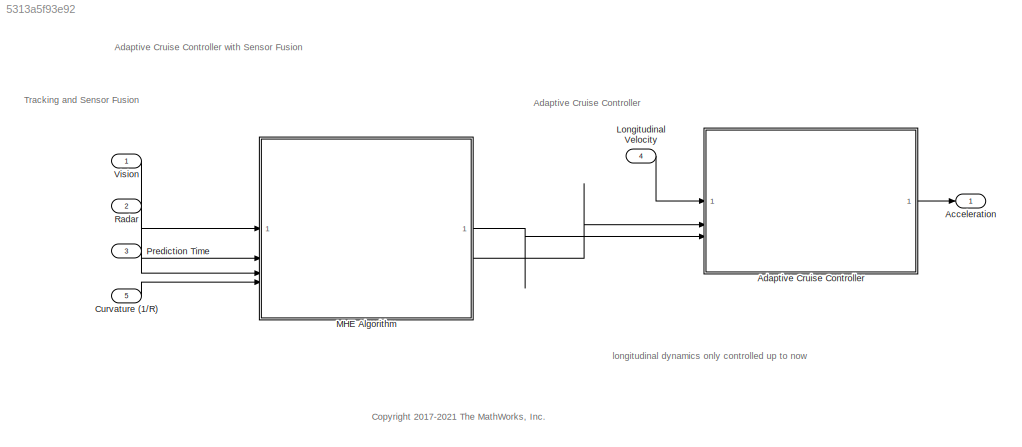
MODEL slx_5313a5f93e92
KIND model
CONFIG AbsTol = auto
CONFIG EnableMultiTasking = off
CONFIG FixedStep = 0.1
CONFIG MaxStep = auto
CONFIG MinStep = auto
CONFIG RelTol = 1e-3
CONFIG SampleTimeConstraint = Unconstrained
CONFIG SolverName = FixedStepAuto
CONFIG StartTime = 0.0
CONFIG StopTime = 34
BLOCK [Outport] Acceleration 
  OutDataTypeStr = double
  PortDimensions = 1
  SampleTime = [0.10000000000000001,0]
  SamplingMode = Sample based
  SignalType = real
  VectorParamsAs1DForOutWhenUnconnected = off
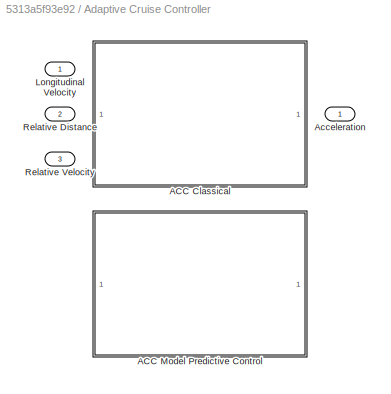
BLOCK [SubSystem] Adaptive Cruise Controller
  Variant = on
  VariantControl = Variant1
BLOCK [Outport] Adaptive Cruise Controller/ Acceleration
  VectorParamsAs1DForOutWhenUnconnected = off
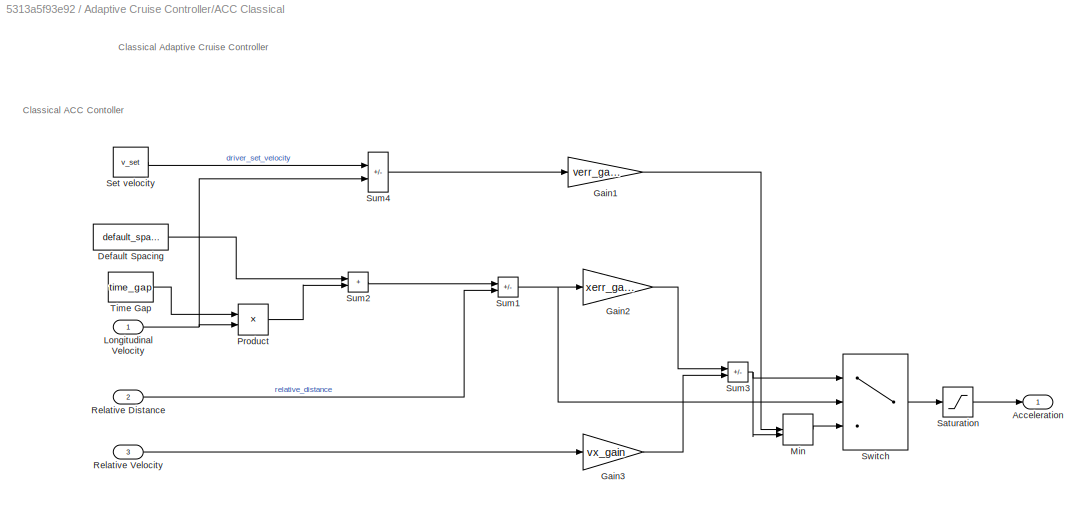
BLOCK [SubSystem] Adaptive Cruise Controller/ACC Classical
  RTWFileNameOpts = Use function name
  RTWSystemCode = Reusable function
  TreatAsAtomicUnit = on
  VariantControl = controller_type == 1
BLOCK [Outport] Adaptive Cruise Controller/ACC Classical/Acceleration
  VectorParamsAs1DForOutWhenUnconnected = off
BLOCK [Constant] Adaptive Cruise Controller/ACC Classical/Default Spacing
  SampleTime = Ts
  Value = default_spacing
BLOCK [Gain] Adaptive Cruise Controller/ACC Classical/Gain1
  Gain = verr_gain
BLOCK [Gain] Adaptive Cruise Controller/ACC Classical/Gain2
  Gain = xerr_gain
BLOCK [Gain] Adaptive Cruise Controller/ACC Classical/Gain3
  Gain = vx_gain
BLOCK [Inport] Adaptive Cruise Controller/ACC Classical/Longitudinal Velocity
BLOCK [MinMax] Adaptive Cruise Controller/ACC Classical/Min
  Inputs = 2
BLOCK [Product] Adaptive Cruise Controller/ACC Classical/Product
BLOCK [Inport] Adaptive Cruise Controller/ACC Classical/Relative Distance
  Port = 2
BLOCK [Inport] Adaptive Cruise Controller/ACC Classical/Relative Velocity
  Port = 3
BLOCK [Saturate] Adaptive Cruise Controller/ACC Classical/Saturation
  LowerLimit = min_ac
  UpperLimit = max_ac
BLOCK [Constant] Adaptive Cruise Controller/ACC Classical/Set velocity
  SampleTime = Ts
  Value = v_set
BLOCK [Sum] Adaptive Cruise Controller/ACC Classical/Sum1
  IconShape = rectangular
  Inputs = +-
BLOCK [Sum] Adaptive Cruise Controller/ACC Classical/Sum2
  IconShape = rectangular
BLOCK [Sum] Adaptive Cruise Controller/ACC Classical/Sum3
  IconShape = rectangular
  Inputs = -+
BLOCK [Sum] Adaptive Cruise Controller/ACC Classical/Sum4
  IconShape = rectangular
  Inputs = +-
BLOCK [Switch] Adaptive Cruise Controller/ACC Classical/Switch
  Criteria = u2 > Threshold
  InputSameDT = off
  SaturateOnIntegerOverflow = off
BLOCK [Constant] Adaptive Cruise Controller/ACC Classical/Time Gap
  SampleTime = Ts
  Value = time_gap
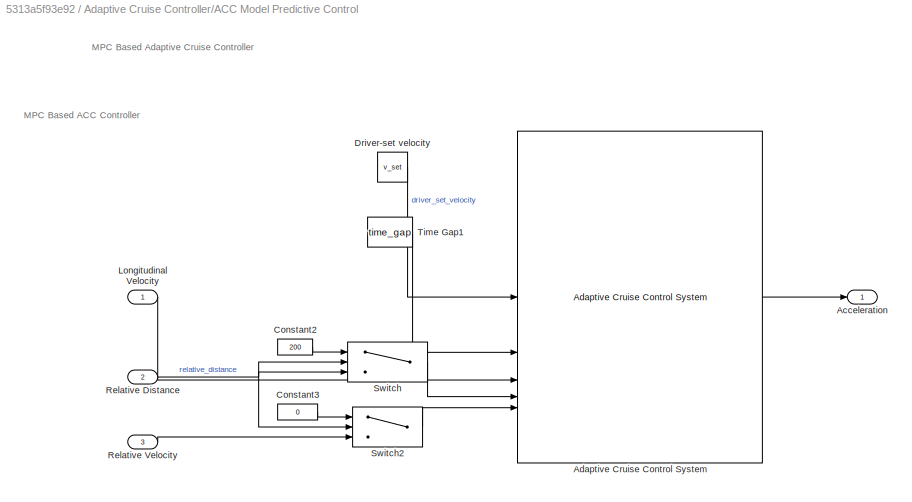
BLOCK [SubSystem] Adaptive Cruise Controller/ACC Model Predictive Control
  RTWFileNameOpts = Use function name
  RTWSystemCode = Reusable function
  TreatAsAtomicUnit = on
  VariantControl = controller_type == 2
BLOCK [Outport] Adaptive Cruise Controller/ACC Model Predictive Control/Acceleration
  OutDataTypeStr = double
  PortDimensions = 1
  SampleTime = [0.10000000000000001,0]
  SamplingMode = Sample based
  SignalType = real
  VectorParamsAs1DForOutWhenUnconnected = off
BLOCK [Reference] Adaptive Cruise Controller/ACC Model Predictive Control/Adaptive Cruise Control System  REF=mpcadaslib/Adaptive Cruise Control System
  SourceBlock = mpcadaslib/Adaptive Cruise Control System
  SourceType = Adaptive cruise control (ACC) system
BLOCK [Constant] Adaptive Cruise Controller/ACC Model Predictive Control/Constant2
  SampleTime = Ts
  Value = 200
BLOCK [Constant] Adaptive Cruise Controller/ACC Model Predictive Control/Constant3
  SampleTime = Ts
  Value = 0
BLOCK [Constant] Adaptive Cruise Controller/ACC Model Predictive Control/Driver-set velocity
  SampleTime = Ts
  Value = v_set
BLOCK [Inport] Adaptive Cruise Controller/ACC Model Predictive Control/Longitudinal Velocity
BLOCK [Inport] Adaptive Cruise Controller/ACC Model Predictive Control/Relative Distance
  Port = 2
BLOCK [Inport] Adaptive Cruise Controller/ACC Model Predictive Control/Relative Velocity
  Port = 3
BLOCK [Switch] Adaptive Cruise Controller/ACC Model Predictive Control/Switch
  Criteria = u2 > Threshold
  InputSameDT = off
  SaturateOnIntegerOverflow = off
  Threshold = 1000
BLOCK [Switch] Adaptive Cruise Controller/ACC Model Predictive Control/Switch2
  Criteria = u2 > Threshold
  InputSameDT = off
  SaturateOnIntegerOverflow = off
  Threshold = 1000
BLOCK [Constant] Adaptive Cruise Controller/ACC Model Predictive Control/Time Gap1
  SampleTime = Ts
  Value = time_gap
BLOCK [Inport] Adaptive Cruise Controller/Longitudinal Velocity 
BLOCK [Inport] Adaptive Cruise Controller/Relative Distance
  Port = 2
BLOCK [Inport] Adaptive Cruise Controller/Relative Velocity 
  Port = 3
BLOCK [Inport] Curvature (1//R)
  BusOutputAsStruct = on
  OutDataTypeStr = double
  Port = 5
  PortDimensions = [1 1]
  SampleTime = [0.10000000000000001,0]
  SamplingMode = Sample based
  SignalType = real
BLOCK [Inport] Longitudinal Velocity
  OutDataTypeStr = double
  Port = 4
  PortDimensions = 1
  SampleTime = [0.10000000000000001,0]
  SamplingMode = Sample based
  SignalType = real
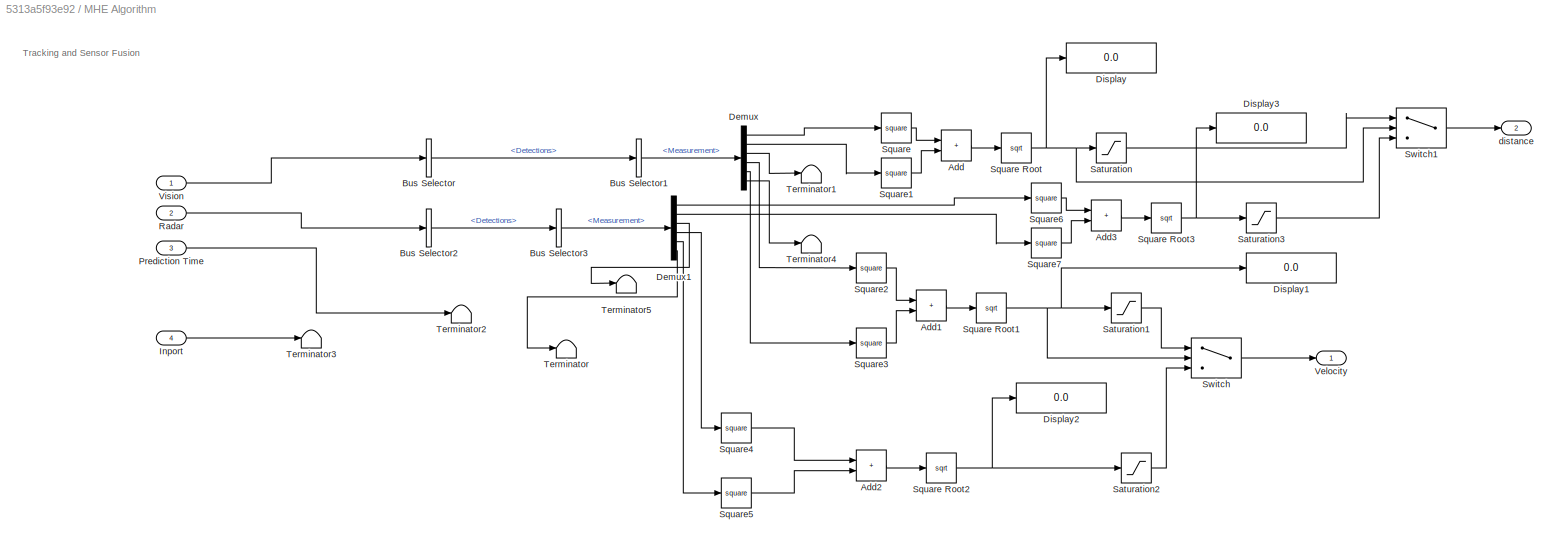
BLOCK [SubSystem] MHE Algorithm
  RTWFileNameOpts = Use function name
  RTWSystemCode = Reusable function
  TreatAsAtomicUnit = on
BLOCK [Sum] MHE Algorithm/Add
  IconShape = rectangular
BLOCK [Sum] MHE Algorithm/Add1
  IconShape = rectangular
BLOCK [Sum] MHE Algorithm/Add2
  IconShape = rectangular
BLOCK [Sum] MHE Algorithm/Add3
  IconShape = rectangular
BLOCK [BusSelector] MHE Algorithm/Bus Selector
  OutputSignals = Detections
BLOCK [BusSelector] MHE Algorithm/Bus Selector1
  OutputSignals = Measurement
BLOCK [BusSelector] MHE Algorithm/Bus Selector2
  OutputSignals = Detections
BLOCK [BusSelector] MHE Algorithm/Bus Selector3
  OutputSignals = Measurement
BLOCK [Demux] MHE Algorithm/Demux
  Outputs = 6
BLOCK [Demux] MHE Algorithm/Demux1
  Outputs = 6
BLOCK [Display] MHE Algorithm/Display
  Decimation = 1
BLOCK [Display] MHE Algorithm/Display1
  Decimation = 1
BLOCK [Display] MHE Algorithm/Display2
  Decimation = 1
BLOCK [Display] MHE Algorithm/Display3
  Decimation = 1
BLOCK [Inport] MHE Algorithm/Inport
  Port = 4
BLOCK [Inport] MHE Algorithm/Prediction Time
  BusOutputAsStruct = on
  OutDataTypeStr = double
  Port = 3
  PortDimensions = [1 1]
  SampleTime = [0.10000000000000001,0]
BLOCK [Inport] MHE Algorithm/Radar
  BusOutputAsStruct = on
  OutDataTypeStr = Bus: BusRadar
  Port = 2
  PortDimensions = [1 1]
  SampleTime = [0.10000000000000001,0]
BLOCK [Saturate] MHE Algorithm/Saturation
  LowerLimit = -50
  UpperLimit = 50
BLOCK [Saturate] MHE Algorithm/Saturation1
  LowerLimit = -20
  UpperLimit = 20
BLOCK [Saturate] MHE Algorithm/Saturation2
  LowerLimit = -20
  UpperLimit = 20
BLOCK [Saturate] MHE Algorithm/Saturation3
  LowerLimit = -50
  UpperLimit = 50
BLOCK [Math] MHE Algorithm/Square
  Operator = square
BLOCK [Sqrt] MHE Algorithm/Square Root
BLOCK [Sqrt] MHE Algorithm/Square Root1
BLOCK [Sqrt] MHE Algorithm/Square Root2
BLOCK [Sqrt] MHE Algorithm/Square Root3
BLOCK [Math] MHE Algorithm/Square1
  Operator = square
BLOCK [Math] MHE Algorithm/Square2
  Operator = square
BLOCK [Math] MHE Algorithm/Square3
  Operator = square
BLOCK [Math] MHE Algorithm/Square4
  Operator = square
BLOCK [Math] MHE Algorithm/Square5
  Operator = square
BLOCK [Math] MHE Algorithm/Square6
  Operator = square
BLOCK [Math] MHE Algorithm/Square7
  Operator = square
BLOCK [Switch] MHE Algorithm/Switch
  Criteria = u2 > Threshold
  InputSameDT = off
  SaturateOnIntegerOverflow = off
BLOCK [Switch] MHE Algorithm/Switch1
  Criteria = u2 > Threshold
  InputSameDT = off
  SaturateOnIntegerOverflow = off
BLOCK [Terminator] MHE Algorithm/Terminator
BLOCK [Terminator] MHE Algorithm/Terminator1
BLOCK [Terminator] MHE Algorithm/Terminator2
BLOCK [Terminator] MHE Algorithm/Terminator3
BLOCK [Terminator] MHE Algorithm/Terminator4
BLOCK [Terminator] MHE Algorithm/Terminator5
BLOCK [Outport] MHE Algorithm/Velocity
BLOCK [Inport] MHE Algorithm/Vision
  BusOutputAsStruct = on
  OutDataTypeStr = Bus: BusVision
  PortDimensions = [1 1]
  SampleTime = [0.10000000000000001,0]
BLOCK [Outport] MHE Algorithm/distance
  Port = 2
BLOCK [Inport] Prediction Time
  BusOutputAsStruct = on
  OutDataTypeStr = double
  Port = 3
  PortDimensions = [1 1]
  SampleTime = [0.10000000000000001,0]
  SamplingMode = Sample based
  SignalType = real
BLOCK [Inport] Radar
  BusOutputAsStruct = on
  OutDataTypeStr = Bus: BusRadar
  Port = 2
  SampleTime = [0.10000000000000001,0]
BLOCK [Inport] Vision
  BusOutputAsStruct = on
  OutDataTypeStr = Bus: BusVision
  SampleTime = [0.10000000000000001,0]
ANNOTATION (root): Adaptive Cruise Controller with Sensor Fusion
ANNOTATION (root): Adaptive Cruise Controller
ANNOTATION (root): <copyright redacted>
ANNOTATION (root): Tracking and Sensor Fusion
ANNOTATION (root): longitudinal dynamics only controlled up to now
ANNOTATION Adaptive Cruise Controller/ACC Classical: Classical Adaptive Cruise Controller
ANNOTATION Adaptive Cruise Controller/ACC Classical: Classical ACC Contoller
ANNOTATION Adaptive Cruise Controller/ACC Model Predictive Control: MPC Based Adaptive Cruise Controller
ANNOTATION Adaptive Cruise Controller/ACC Model Predictive Control: MPC Based ACC Controller
ANNOTATION MHE Algorithm: Tracking and Sensor Fusion
LINE Adaptive Cruise Controller/ACC Classical/Default Spacing:1 -> Adaptive Cruise Controller/ACC Classical/Sum2:1
LINE Adaptive Cruise Controller/ACC Classical/Gain1:1 -> Adaptive Cruise Controller/ACC Classical/Min:1
LINE Adaptive Cruise Controller/ACC Classical/Gain2:1 -> Adaptive Cruise Controller/ACC Classical/Sum3:1
LINE Adaptive Cruise Controller/ACC Classical/Gain3:1 -> Adaptive Cruise Controller/ACC Classical/Sum3:2
NET Adaptive Cruise Controller/ACC Classical/Longitudinal Velocity:1 -> Adaptive Cruise Controller/ACC Classical/Product:2, Adaptive Cruise Controller/ACC Classical/Sum4:2
LINE Adaptive Cruise Controller/ACC Classical/Min:1 -> Adaptive Cruise Controller/ACC Classical/Switch:3
LINE Adaptive Cruise Controller/ACC Classical/Product:1 -> Adaptive Cruise Controller/ACC Classical/Sum2:2
LINE Adaptive Cruise Controller/ACC Classical/Relative Distance:1 -> Adaptive Cruise Controller/ACC Classical/Sum1:2
LINE Adaptive Cruise Controller/ACC Classical/Relative Velocity:1 -> Adaptive Cruise Controller/ACC Classical/Gain3:1
LINE Adaptive Cruise Controller/ACC Classical/Saturation:1 -> Adaptive Cruise Controller/ACC Classical/Acceleration:1
LINE Adaptive Cruise Controller/ACC Classical/Set velocity:1 -> Adaptive Cruise Controller/ACC Classical/Sum4:1
NET Adaptive Cruise Controller/ACC Classical/Sum1:1 -> Adaptive Cruise Controller/ACC Classical/Gain2:1, Adaptive Cruise Controller/ACC Classical/Switch:2
LINE Adaptive Cruise Controller/ACC Classical/Sum2:1 -> Adaptive Cruise Controller/ACC Classical/Sum1:1
NET Adaptive Cruise Controller/ACC Classical/Sum3:1 -> Adaptive Cruise Controller/ACC Classical/Min:2, Adaptive Cruise Controller/ACC Classical/Switch:1
LINE Adaptive Cruise Controller/ACC Classical/Sum4:1 -> Adaptive Cruise Controller/ACC Classical/Gain1:1
LINE Adaptive Cruise Controller/ACC Classical/Switch:1 -> Adaptive Cruise Controller/ACC Classical/Saturation:1
LINE Adaptive Cruise Controller/ACC Classical/Time Gap:1 -> Adaptive Cruise Controller/ACC Classical/Product:1
LINE Adaptive Cruise Controller/ACC Model Predictive Control/Adaptive Cruise Control System:1 -> Adaptive Cruise Controller/ACC Model Predictive Control/Acceleration:1
LINE Adaptive Cruise Controller/ACC Model Predictive Control/Constant2:1 -> Adaptive Cruise Controller/ACC Model Predictive Control/Switch:1
LINE Adaptive Cruise Controller/ACC Model Predictive Control/Constant3:1 -> Adaptive Cruise Controller/ACC Model Predictive Control/Switch2:1
LINE Adaptive Cruise Controller/ACC Model Predictive Control/Driver-set velocity:1 -> Adaptive Cruise Controller/ACC Model Predictive Control/Adaptive Cruise Control System:1
LINE Adaptive Cruise Controller/ACC Model Predictive Control/Longitudinal Velocity:1 -> Adaptive Cruise Controller/ACC Model Predictive Control/Adaptive Cruise Control System:3
NET Adaptive Cruise Controller/ACC Model Predictive Control/Relative Distance:1 -> Adaptive Cruise Controller/ACC Model Predictive Control/Switch2:2, Adaptive Cruise Controller/ACC Model Predictive Control/Switch:2, Adaptive Cruise Controller/ACC Model Predictive Control/Switch:3
LINE Adaptive Cruise Controller/ACC Model Predictive Control/Relative Velocity:1 -> Adaptive Cruise Controller/ACC Model Predictive Control/Switch2:3
LINE Adaptive Cruise Controller/ACC Model Predictive Control/Switch2:1 -> Adaptive Cruise Controller/ACC Model Predictive Control/Adaptive Cruise Control System:5
LINE Adaptive Cruise Controller/ACC Model Predictive Control/Switch:1 -> Adaptive Cruise Controller/ACC Model Predictive Control/Adaptive Cruise Control System:4
LINE Adaptive Cruise Controller/ACC Model Predictive Control/Time Gap1:1 -> Adaptive Cruise Controller/ACC Model Predictive Control/Adaptive Cruise Control System:2
LINE Adaptive Cruise Controller:1 -> Acceleration :1
LINE Curvature (1//R):1 -> MHE Algorithm:4
LINE Longitudinal Velocity:1 -> Adaptive Cruise Controller:1
LINE MHE Algorithm/Add1:1 -> MHE Algorithm/Square Root1:1
LINE MHE Algorithm/Add2:1 -> MHE Algorithm/Square Root2:1
LINE MHE Algorithm/Add3:1 -> MHE Algorithm/Square Root3:1
LINE MHE Algorithm/Add:1 -> MHE Algorithm/Square Root:1
LINE MHE Algorithm/Bus Selector1:1 -> MHE Algorithm/Demux:1
LINE MHE Algorithm/Bus Selector2:1 -> MHE Algorithm/Bus Selector3:1
LINE MHE Algorithm/Bus Selector3:1 -> MHE Algorithm/Demux1:1
LINE MHE Algorithm/Bus Selector:1 -> MHE Algorithm/Bus Selector1:1
LINE MHE Algorithm/Demux1:1 -> MHE Algorithm/Square6:1
LINE MHE Algorithm/Demux1:2 -> MHE Algorithm/Square7:1
LINE MHE Algorithm/Demux1:3 -> MHE Algorithm/Terminator5:1
LINE MHE Algorithm/Demux1:4 -> MHE Algorithm/Square4:1
LINE MHE Algorithm/Demux1:5 -> MHE Algorithm/Square5:1
LINE MHE Algorithm/Demux1:6 -> MHE Algorithm/Terminator:1
LINE MHE Algorithm/Demux:1 -> MHE Algorithm/Square:1
LINE MHE Algorithm/Demux:2 -> MHE Algorithm/Square1:1
LINE MHE Algorithm/Demux:3 -> MHE Algorithm/Terminator1:1
LINE MHE Algorithm/Demux:4 -> MHE Algorithm/Square2:1
LINE MHE Algorithm/Demux:5 -> MHE Algorithm/Square3:1
LINE MHE Algorithm/Demux:6 -> MHE Algorithm/Terminator4:1
LINE MHE Algorithm/Inport:1 -> MHE Algorithm/Terminator3:1
LINE MHE Algorithm/Prediction Time:1 -> MHE Algorithm/Terminator2:1
LINE MHE Algorithm/Radar:1 -> MHE Algorithm/Bus Selector2:1
LINE MHE Algorithm/Saturation1:1 -> MHE Algorithm/Switch:1
LINE MHE Algorithm/Saturation2:1 -> MHE Algorithm/Switch:3
LINE MHE Algorithm/Saturation3:1 -> MHE Algorithm/Switch1:3
LINE MHE Algorithm/Saturation:1 -> MHE Algorithm/Switch1:1
NET MHE Algorithm/Square Root1:1 -> MHE Algorithm/Display1:1, MHE Algorithm/Saturation1:1, MHE Algorithm/Switch:2
NET MHE Algorithm/Square Root2:1 -> MHE Algorithm/Display2:1, MHE Algorithm/Saturation2:1
NET MHE Algorithm/Square Root3:1 -> MHE Algorithm/Display3:1, MHE Algorithm/Saturation3:1
NET MHE Algorithm/Square Root:1 -> MHE Algorithm/Display:1, MHE Algorithm/Saturation:1, MHE Algorithm/Switch1:2
LINE MHE Algorithm/Square1:1 -> MHE Algorithm/Add:2
LINE MHE Algorithm/Square2:1 -> MHE Algorithm/Add1:1
LINE MHE Algorithm/Square3:1 -> MHE Algorithm/Add1:2
LINE MHE Algorithm/Square4:1 -> MHE Algorithm/Add2:1
LINE MHE Algorithm/Square5:1 -> MHE Algorithm/Add2:2
LINE MHE Algorithm/Square6:1 -> MHE Algorithm/Add3:1
LINE MHE Algorithm/Square7:1 -> MHE Algorithm/Add3:2
LINE MHE Algorithm/Square:1 -> MHE Algorithm/Add:1
LINE MHE Algorithm/Switch1:1 -> MHE Algorithm/distance:1
LINE MHE Algorithm/Switch:1 -> MHE Algorithm/Velocity:1
LINE MHE Algorithm/Vision:1 -> MHE Algorithm/Bus Selector:1
LINE MHE Algorithm:1 -> Adaptive Cruise Controller:3
LINE MHE Algorithm:2 -> Adaptive Cruise Controller:2
LINE Prediction Time:1 -> MHE Algorithm:3
LINE Radar:1 -> MHE Algorithm:2
LINE Vision:1 -> MHE Algorithm:1
note: NET lines group one-source signal fan-out (src -> all destinations, sorted); 1:1 wires keep LINE
